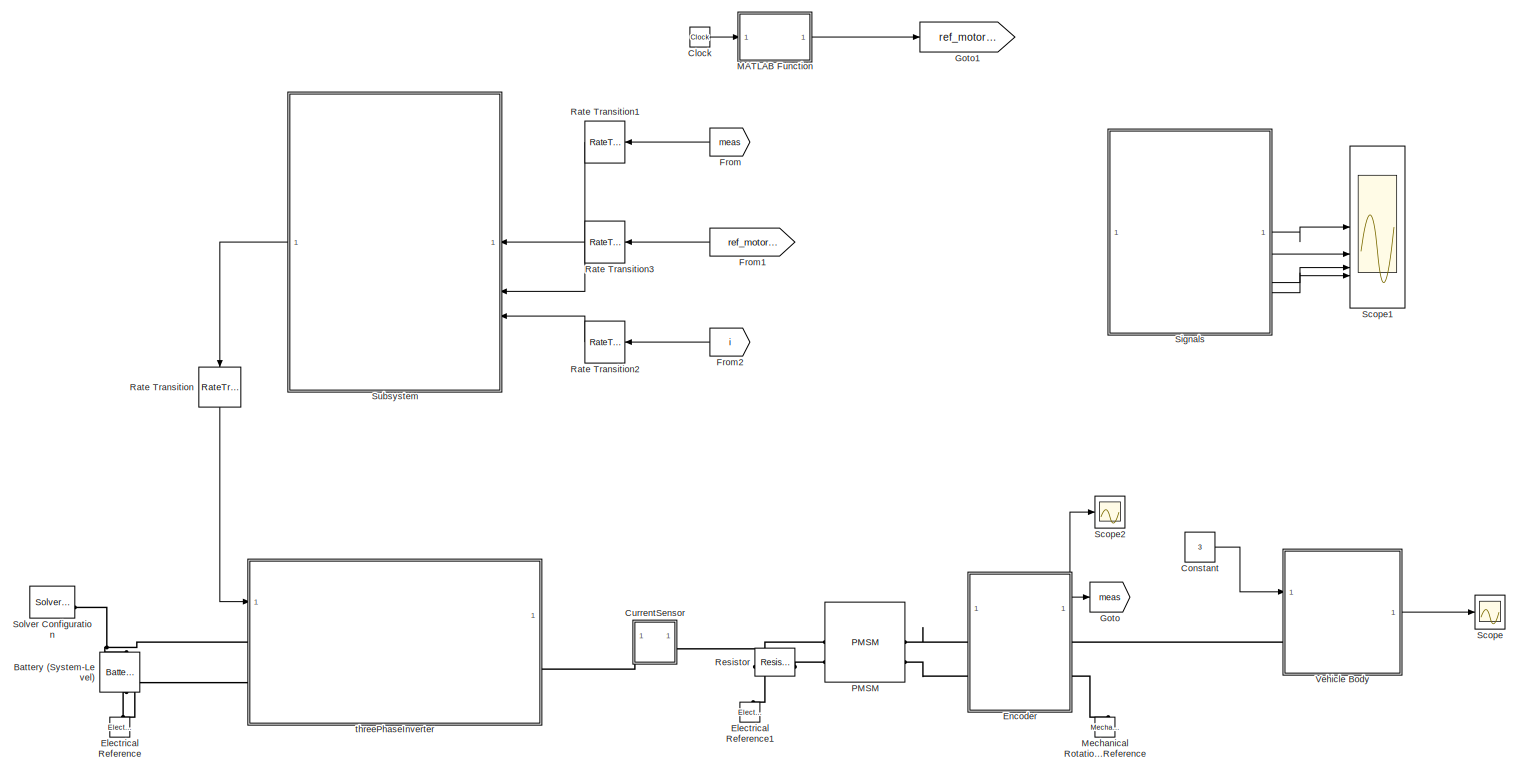
[diagram: root canvas - part 1/1, most of the canvas]
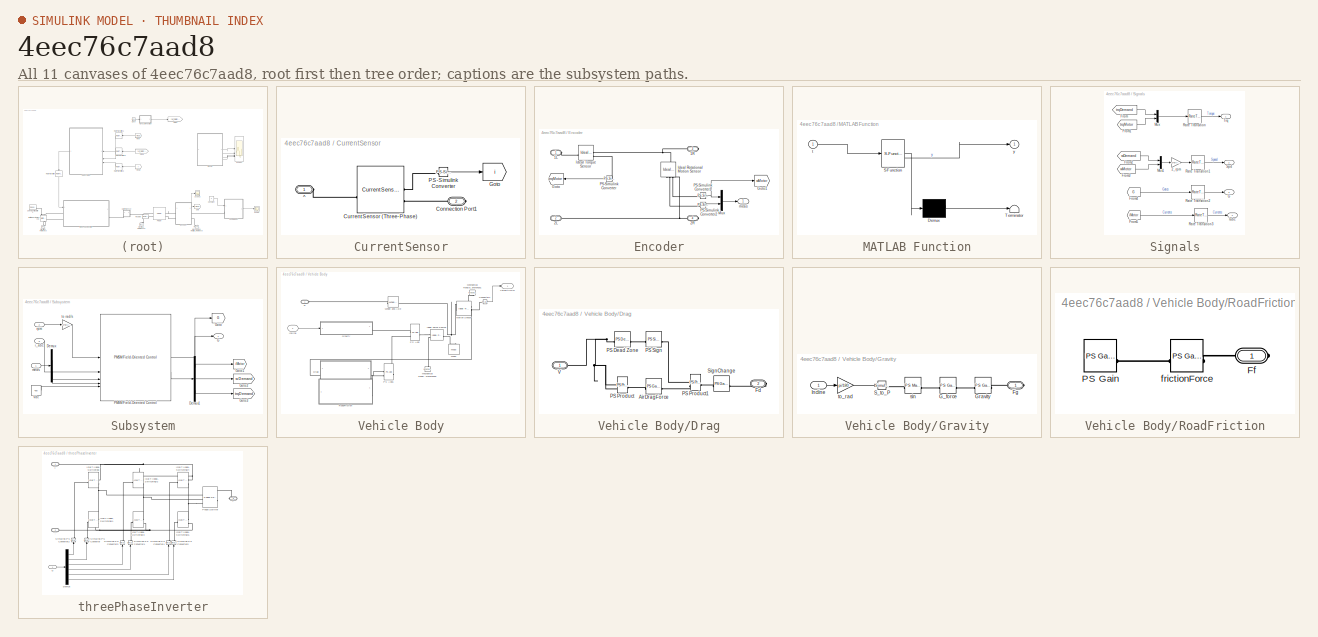
[diagram: thumbnail index - all 11 canvases of the model, root first then tree order]
MODEL slx_4eec76c7aad8
KIND model
CONFIG AbsTol = 1e-3
CONFIG EnableMultiTasking = off
CONFIG FixedStep = auto
CONFIG MaxStep = auto
CONFIG MinStep = auto
CONFIG RelTol = 1e-3
CONFIG SampleTimeConstraint = Unconstrained
CONFIG SolverName = VariableStepAuto
CONFIG StartTime = 0.0
CONFIG StopTime = 5
BLOCK [Reference] Battery (System-Level)  REF=sdl_lib/Sources/Battery
(System-Level)
  NameLocation = right
  SourceBlock = sdl_lib/Sources/Battery\n(System-Level)
  SourceType = Battery\n(System-Level)
BLOCK [Clock] Clock
BLOCK [Constant] Constant
  Value = 3
BLOCK [SubSystem] CurrentSensor
BLOCK [PMIOPort] CurrentSensor/Connection Port1
  Port = 2
  Side = Right
BLOCK [Reference] CurrentSensor/Current Sensor (Three-Phase)  REF=ee_lib/Sensors &
Transducers/Current Sensor
(Three-Phase)
  SourceBlock = ee_lib/Sensors &\nTransducers/Current Sensor\n(Three-Phase)
  SourceType = Current Sensor\n(Three-Phase)
BLOCK [Goto] CurrentSensor/Goto
  GotoTag = i
  TagVisibility = global
BLOCK [Reference] CurrentSensor/PS-Simulink Converter  REF=nesl_utility/PS-Simulink
Converter
  SourceBlock = nesl_utility/PS-Simulink\nConverter
  SourceType = PS-Simulink\nConverter
BLOCK [PMIOPort] CurrentSensor/^
  Side = Left
BLOCK [Reference] Electrical Reference  REF=fl_lib/Electrical/Electrical Elements/Electrical Reference
  NameLocation = right
  SourceBlock = fl_lib/Electrical/Electrical Elements/Electrical Reference
  SourceType = Electrical Reference
BLOCK [Reference] Electrical Reference1  REF=fl_lib/Electrical/Electrical Elements/Electrical Reference
  NameLocation = right
  SourceBlock = fl_lib/Electrical/Electrical Elements/Electrical Reference
  SourceType = Electrical Reference
BLOCK [SubSystem] Encoder
BLOCK [PMIOPort] Encoder/1L
  Side = Left
BLOCK [PMIOPort] Encoder/1R
  Port = 3
  Side = Right
BLOCK [PMIOPort] Encoder/2L
  Port = 2
  Side = Left
BLOCK [PMIOPort] Encoder/2R
  Port = 4
  Side = Right
BLOCK [Goto] Encoder/Goto
  GotoTag = trqMotor
  TagVisibility = global
BLOCK [Goto] Encoder/Goto1
  GotoTag = wMotor
  TagVisibility = global
BLOCK [Reference] Encoder/Ideal Rotational Motion Sensor  REF=fl_lib/Mechanical/Mechanical Sensors/Ideal Rotational
Motion Sensor
  NameLocation = left
  SourceBlock = fl_lib/Mechanical/Mechanical Sensors/Ideal Rotational\nMotion Sensor
  SourceType = Ideal Rotational\nMotion Sensor
BLOCK [Reference] Encoder/Ideal Torque Sensor  REF=fl_lib/Mechanical/Mechanical Sensors/Ideal Torque Sensor
  SourceBlock = fl_lib/Mechanical/Mechanical Sensors/Ideal Torque Sensor
  SourceType = Ideal Torque Sensor
BLOCK [Mux] Encoder/Mux
  DisplayOption = bar
  Inputs = 2
BLOCK [Reference] Encoder/PS-Simulink Converter  REF=nesl_utility/PS-Simulink
Converter
  SourceBlock = nesl_utility/PS-Simulink\nConverter
  SourceType = PS-Simulink\nConverter
BLOCK [Reference] Encoder/PS-Simulink Converter1  REF=nesl_utility/PS-Simulink
Converter
  SourceBlock = nesl_utility/PS-Simulink\nConverter
  SourceType = PS-Simulink\nConverter
BLOCK [Reference] Encoder/PS-Simulink Converter2  REF=nesl_utility/PS-Simulink
Converter
  SourceBlock = nesl_utility/PS-Simulink\nConverter
  SourceType = PS-Simulink\nConverter
BLOCK [Outport] Encoder/meas
BLOCK [From] From
  GotoTag = meas
  TagVisibility = global
BLOCK [From] From1
  GotoTag = ref_motor_rpm
  TagVisibility = global
BLOCK [From] From2
  GotoTag = i
  TagVisibility = global
BLOCK [Goto] Goto
  GotoTag = meas
  TagVisibility = global
BLOCK [Goto] Goto1
  GotoTag = ref_motor_rpm
  TagVisibility = global
BLOCK [SubSystem] MATLAB Function
  ErrorFcn = Stateflow.Translate.translate
  PermitHierarchicalResolution = ExplicitOnly
  SFBlockType = MATLAB Function
  TreatAsAtomicUnit = on
BLOCK [Demux] MATLAB Function/ Demux 
  Outputs = 1
BLOCK [S-Function] MATLAB Function/ SFunction 
  EnableBusSupport = on
  FunctionName = sf_sfun
  PortCounts = [1 2]
  SFcnIsStateOwnerBlock = off
  SFunctionDeploymentMode = off
  Tag = Stateflow S-Function 2
BLOCK [Terminator] MATLAB Function/ Terminator 
BLOCK [Inport] MATLAB Function/t
BLOCK [Outport] MATLAB Function/y
BLOCK [Reference] Mechanical Rotational Reference  REF=fl_lib/Mechanical/Rotational Elements/Mechanical
Rotational Reference
  NameLocation = right
  SourceBlock = fl_lib/Mechanical/Rotational Elements/Mechanical\nRotational Reference
  SourceType = Mechanical\nRotational Reference
BLOCK [Reference] PMSM  REF=ee_lib/Electromechanical/Permanent Magnet/PMSM
  SourceBlock = ee_lib/Electromechanical/Permanent Magnet/PMSM
  SourceType = PMSM
BLOCK [RateTransition] Rate Transition
  NameLocation = left
BLOCK [RateTransition] Rate Transition1
BLOCK [RateTransition] Rate Transition2
BLOCK [RateTransition] Rate Transition3
BLOCK [Reference] Resistor  REF=fl_lib/Electrical/Electrical Elements/Resistor
  SourceBlock = fl_lib/Electrical/Electrical Elements/Resistor
  SourceType = Resistor
BLOCK [Scope] Scope
  Floating = off
  NumInputPorts = 1
  ScopeSpecificationString = Simulink.scopes.TimeScopeBlockCfg('CurrentConfiguration', extmgr.ConfigurationSet(extmgr.Configuration('Core','General UI',true),extmgr.Configuration('Core','Source UI',true),extmgr.Configuration('Sources','WiredSimulink',true),extmgr.Configuration('Visuals','Time Domain',true,'SerializedDisplays',{struct('MinYLimReal','-1.6219','MaxYLimReal','0.18021','YLabelReal','','MinYLimMag','0.00000','MaxYL...<+1417ch>
BLOCK [Scope] Scope1
  Floating = off
  NumInputPorts = 4
  ScopeSpecificationString = Simulink.scopes.TimeScopeBlockCfg('CurrentConfiguration', extmgr.ConfigurationSet(extmgr.Configuration('Core','General UI',true),extmgr.Configuration('Core','Source UI',true),extmgr.Configuration('Sources','WiredSimulink',true,'DataLoggingVariableName','ScopeData1'),extmgr.Configuration('Visuals','Time Domain',true,'SerializedDisplays',{struct('MinYLimReal','-29.99251','MaxYLimReal','259.93262','Y...<+4563ch>
BLOCK [Scope] Scope2
  Floating = off
  NumInputPorts = 1
  ScopeSpecificationString = Simulink.scopes.TimeScopeBlockCfg('CurrentConfiguration', extmgr.ConfigurationSet(extmgr.Configuration('Core','General UI',true),extmgr.Configuration('Core','Source UI',true),extmgr.Configuration('Sources','WiredSimulink',true,'DataLoggingVariableName','ScopeData1'),extmgr.Configuration('Visuals','Time Domain',true,'SerializedDisplays',{struct('MinYLimReal','-17.63681','MaxYLimReal','1.95965','YLa...<+1500ch>
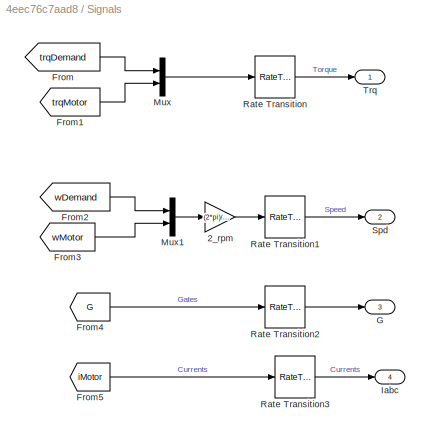
BLOCK [SubSystem] Signals
BLOCK [Gain] Signals/2_rpm
  Gain = (2*pi)/60
BLOCK [From] Signals/From
  GotoTag = trqDemand
  TagVisibility = global
BLOCK [From] Signals/From1
  GotoTag = trqMotor
  TagVisibility = global
BLOCK [From] Signals/From2
  GotoTag = wDemand
  TagVisibility = global
BLOCK [From] Signals/From3
  GotoTag = wMotor
  TagVisibility = global
BLOCK [From] Signals/From4
  GotoTag = G
  TagVisibility = global
BLOCK [From] Signals/From5
  GotoTag = iMotor
  TagVisibility = global
BLOCK [Outport] Signals/G
  Port = 3
BLOCK [Outport] Signals/Iabc
  Port = 4
BLOCK [Mux] Signals/Mux
  DisplayOption = bar
  Inputs = 2
BLOCK [Mux] Signals/Mux1
  DisplayOption = bar
  Inputs = 2
BLOCK [RateTransition] Signals/Rate Transition
BLOCK [RateTransition] Signals/Rate Transition1
BLOCK [RateTransition] Signals/Rate Transition2
BLOCK [RateTransition] Signals/Rate Transition3
BLOCK [Outport] Signals/Spd
  Port = 2
BLOCK [Outport] Signals/Trq
BLOCK [Reference] Solver Configuration  REF=nesl_utility/Solver
Configuration
  SourceBlock = nesl_utility/Solver\nConfiguration
  SourceType = Solver\nConfiguration
BLOCK [SubSystem] Subsystem
BLOCK [Demux] Subsystem/Demux
  Outputs = 2
BLOCK [Demux] Subsystem/Demux1
  Outputs = 3
BLOCK [Outport] Subsystem/G
BLOCK [Goto] Subsystem/Goto
  GotoTag = G
  TagVisibility = global
BLOCK [Goto] Subsystem/Goto1
  GotoTag = iMotor
  TagVisibility = global
BLOCK [Goto] Subsystem/Goto2
  GotoTag = wDemand
  TagVisibility = global
BLOCK [Goto] Subsystem/Goto3
  GotoTag = trqDemand
  TagVisibility = global
BLOCK [Reference] Subsystem/PMSM Field-Oriented Control  REF=eePmsmFieldOrientedControl/PMSM Field-Oriented
Control
  LibrarySourceBlock = ee_sl_lib/PMSM Control/PMSM Field-Oriented\nControl
  SourceBlock = eePmsmFieldOrientedControl/PMSM Field-Oriented\nControl
  SourceType = PMSM Field-Oriented Control
BLOCK [Constant] Subsystem/Vdc
  Value = 400
BLOCK [Inport] Subsystem/i_abc
  Port = 3
BLOCK [Inport] Subsystem/meas
BLOCK [Inport] Subsystem/rpm
  Port = 2
BLOCK [Gain] Subsystem/to rad//s
  Gain = (2*pi)/60
BLOCK [SubSystem] Vehicle Body
BLOCK [Reference] Vehicle Body/Converter1  REF=nesl_utility/PS-Simulink
Converter
  SourceBlock = nesl_utility/PS-Simulink\nConverter
  SourceType = PS-Simulink\nConverter
BLOCK [SubSystem] Vehicle Body/Drag
BLOCK [Reference] Vehicle Body/Drag/AirDragForce  REF=fl_lib/Physical Signals/Functions/PS Gain
  SourceBlock = fl_lib/Physical Signals/Functions/PS Gain
  SourceType = PS Gain
BLOCK [PMIOPort] Vehicle Body/Drag/Fd
  Port = 2
  Side = Right
BLOCK [Reference] Vehicle Body/Drag/PS Dead Zone  REF=fl_lib/Physical Signals/Nonlinear Operators/PS Dead Zone
  SourceBlock = fl_lib/Physical Signals/Nonlinear Operators/PS Dead Zone
  SourceType = PS Dead Zone
BLOCK [Reference] Vehicle Body/Drag/PS Product  REF=fl_lib/Physical Signals/Functions/PS Product
  SourceBlock = fl_lib/Physical Signals/Functions/PS Product
  SourceType = PS Product
BLOCK [Reference] Vehicle Body/Drag/PS Product1  REF=fl_lib/Physical Signals/Functions/PS Product
  SourceBlock = fl_lib/Physical Signals/Functions/PS Product
  SourceType = PS Product
BLOCK [Reference] Vehicle Body/Drag/PS Sign  REF=fl_lib/Physical Signals/Nonlinear Operators/PS Sign
  SourceBlock = fl_lib/Physical Signals/Nonlinear Operators/PS Sign
  SourceType = PS Sign
BLOCK [Reference] Vehicle Body/Drag/SignChange  REF=fl_lib/Physical Signals/Functions/PS Gain
  SourceBlock = fl_lib/Physical Signals/Functions/PS Gain
  SourceType = PS Gain
BLOCK [PMIOPort] Vehicle Body/Drag/V
  Side = Left
BLOCK [SubSystem] Vehicle Body/Gravity
BLOCK [PMIOPort] Vehicle Body/Gravity/Fg
  Side = Right
BLOCK [Reference] Vehicle Body/Gravity/G_force  REF=fl_lib/Physical Signals/Functions/PS Gain
  SourceBlock = fl_lib/Physical Signals/Functions/PS Gain
  SourceType = PS Gain
BLOCK [Reference] Vehicle Body/Gravity/Gravity  REF=fl_lib/Physical Signals/Functions/PS Gain
  SourceBlock = fl_lib/Physical Signals/Functions/PS Gain
  SourceType = PS Gain
BLOCK [Inport] Vehicle Body/Gravity/Incline
BLOCK [Reference] Vehicle Body/Gravity/S_to_P  REF=nesl_utility/Simulink-PS
Converter
  SourceBlock = nesl_utility/Simulink-PS\nConverter
  SourceType = Simulink-PS\nConverter
BLOCK [Reference] Vehicle Body/Gravity/sin  REF=fl_lib/Physical Signals/Functions/PS Math Function
  SourceBlock = fl_lib/Physical Signals/Functions/PS Math Function
  SourceType = PS Math Function
BLOCK [Gain] Vehicle Body/Gravity/to_rad
  Gain = pi/180
BLOCK [Reference] Vehicle Body/Ideal Force Source  REF=fl_lib/Mechanical/Mechanical Sources/Ideal Force Source
  SourceBlock = fl_lib/Mechanical/Mechanical Sources/Ideal Force Source
  SourceType = Ideal Force Source
BLOCK [Inport] Vehicle Body/Incline
BLOCK [Reference] Vehicle Body/Mass  REF=fl_lib/Mechanical/Translational
Elements/Mass
  NameLocation = right
  SourceBlock = fl_lib/Mechanical/Translational\nElements/Mass
  SourceType = Mass
BLOCK [Reference] Vehicle Body/Mechanical Translational Reference  REF=fl_lib/Mechanical/Translational
Elements/Mechanical
Translational
Reference
  NameLocation = right
  SourceBlock = fl_lib/Mechanical/Translational\nElements/Mechanical\nTranslational\nReference
  SourceType = Mechanical\nTranslational\nReference
BLOCK [Reference] Vehicle Body/Mechanical Translational Reference1  REF=fl_lib/Mechanical/Translational
Elements/Mechanical
Translational
Reference
  NameLocation = left
  SourceBlock = fl_lib/Mechanical/Translational\nElements/Mechanical\nTranslational\nReference
  SourceType = Mechanical\nTranslational\nReference
BLOCK [Reference] Vehicle Body/Motion Sensor  REF=fl_lib/Mechanical/Mechanical Sensors/Ideal Translational
Motion Sensor
  SourceBlock = fl_lib/Mechanical/Mechanical Sensors/Ideal Translational\nMotion Sensor
  SourceType = Ideal Translational\nMotion Sensor
BLOCK [Reference] Vehicle Body/PS Add  REF=fl_lib/Physical Signals/Functions/PS Add
  SourceBlock = fl_lib/Physical Signals/Functions/PS Add
  SourceType = PS Add
BLOCK [Reference] Vehicle Body/PS Add1  REF=fl_lib/Physical Signals/Functions/PS Add
  SourceBlock = fl_lib/Physical Signals/Functions/PS Add
  SourceType = PS Add
BLOCK [PMIOPort] Vehicle Body/R
  Side = Left
BLOCK [SubSystem] Vehicle Body/RoadFriction
BLOCK [PMIOPort] Vehicle Body/RoadFriction/Ff
  Side = Right
BLOCK [Reference] Vehicle Body/RoadFriction/PS Gain  REF=fl_lib/Physical Signals/Functions/PS Gain
  SourceBlock = fl_lib/Physical Signals/Functions/PS Gain
  SourceType = PS Gain
BLOCK [Reference] Vehicle Body/RoadFriction/frictionForce  REF=fl_lib/Physical Signals/Functions/PS Gain
  SourceBlock = fl_lib/Physical Signals/Functions/PS Gain
  SourceType = PS Gain
BLOCK [Outport] Vehicle Body/Velocity(m//s)
BLOCK [Reference] Vehicle Body/Wheel and Axle  REF=fl_lib/Mechanical/Mechanisms/Wheel and Axle
  SourceBlock = fl_lib/Mechanical/Mechanisms/Wheel and Axle
  SourceType = Wheel and Axle
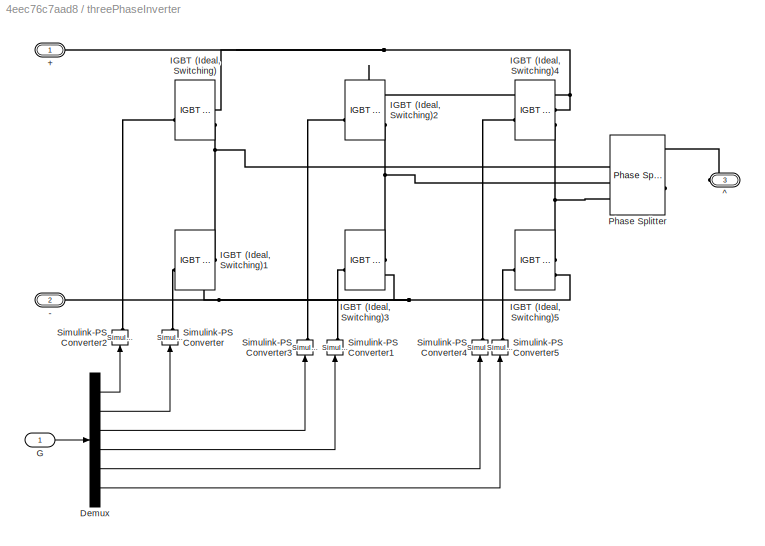
BLOCK [SubSystem] threePhaseInverter
BLOCK [PMIOPort] threePhaseInverter/+
  Side = Left
BLOCK [PMIOPort] threePhaseInverter/-
  Port = 2
  Side = Left
BLOCK [Demux] threePhaseInverter/Demux
  Outputs = 6
BLOCK [Inport] threePhaseInverter/G
BLOCK [Reference] threePhaseInverter/IGBT (Ideal, Switching)  REF=ee_lib/Semiconductors &
Converters/IGBT
(Ideal,
Switching)
  SourceBlock = ee_lib/Semiconductors &\nConverters/IGBT\n(Ideal,\nSwitching)
  SourceType = IGBT\n(Ideal,\nSwitching)
BLOCK [Reference] threePhaseInverter/IGBT (Ideal, Switching)1  REF=ee_lib/Semiconductors &
Converters/IGBT
(Ideal,
Switching)
  SourceBlock = ee_lib/Semiconductors &\nConverters/IGBT\n(Ideal,\nSwitching)
  SourceType = IGBT\n(Ideal,\nSwitching)
BLOCK [Reference] threePhaseInverter/IGBT (Ideal, Switching)2  REF=ee_lib/Semiconductors &
Converters/IGBT
(Ideal,
Switching)
  SourceBlock = ee_lib/Semiconductors &\nConverters/IGBT\n(Ideal,\nSwitching)
  SourceType = IGBT\n(Ideal,\nSwitching)
BLOCK [Reference] threePhaseInverter/IGBT (Ideal, Switching)3  REF=ee_lib/Semiconductors &
Converters/IGBT
(Ideal,
Switching)
  SourceBlock = ee_lib/Semiconductors &\nConverters/IGBT\n(Ideal,\nSwitching)
  SourceType = IGBT\n(Ideal,\nSwitching)
BLOCK [Reference] threePhaseInverter/IGBT (Ideal, Switching)4  REF=ee_lib/Semiconductors &
Converters/IGBT
(Ideal,
Switching)
  SourceBlock = ee_lib/Semiconductors &\nConverters/IGBT\n(Ideal,\nSwitching)
  SourceType = IGBT\n(Ideal,\nSwitching)
BLOCK [Reference] threePhaseInverter/IGBT (Ideal, Switching)5  REF=ee_lib/Semiconductors &
Converters/IGBT
(Ideal,
Switching)
  SourceBlock = ee_lib/Semiconductors &\nConverters/IGBT\n(Ideal,\nSwitching)
  SourceType = IGBT\n(Ideal,\nSwitching)
BLOCK [Reference] threePhaseInverter/Phase Splitter  REF=ee_lib/Connectors &
References/Phase Splitter
  SourceBlock = ee_lib/Connectors &\nReferences/Phase Splitter
  SourceType = Phase Splitter
BLOCK [Reference] threePhaseInverter/Simulink-PS Converter  REF=nesl_utility/Simulink-PS
Converter
  NameLocation = right
  SourceBlock = nesl_utility/Simulink-PS\nConverter
  SourceType = Simulink-PS\nConverter
BLOCK [Reference] threePhaseInverter/Simulink-PS Converter1  REF=nesl_utility/Simulink-PS
Converter
  NameLocation = right
  SourceBlock = nesl_utility/Simulink-PS\nConverter
  SourceType = Simulink-PS\nConverter
BLOCK [Reference] threePhaseInverter/Simulink-PS Converter2  REF=nesl_utility/Simulink-PS
Converter
  NameLocation = right
  SourceBlock = nesl_utility/Simulink-PS\nConverter
  SourceType = Simulink-PS\nConverter
BLOCK [Reference] threePhaseInverter/Simulink-PS Converter3  REF=nesl_utility/Simulink-PS
Converter
  NameLocation = right
  SourceBlock = nesl_utility/Simulink-PS\nConverter
  SourceType = Simulink-PS\nConverter
BLOCK [Reference] threePhaseInverter/Simulink-PS Converter4  REF=nesl_utility/Simulink-PS
Converter
  NameLocation = right
  SourceBlock = nesl_utility/Simulink-PS\nConverter
  SourceType = Simulink-PS\nConverter
BLOCK [Reference] threePhaseInverter/Simulink-PS Converter5  REF=nesl_utility/Simulink-PS
Converter
  NameLocation = right
  SourceBlock = nesl_utility/Simulink-PS\nConverter
  SourceType = Simulink-PS\nConverter
BLOCK [PMIOPort] threePhaseInverter/^
  Port = 3
  Side = Right
LINE Clock:1 -> MATLAB Function:1
LINE Constant:1 -> Vehicle Body:1
LINE CurrentSensor/PS-Simulink Converter:1 -> CurrentSensor/Goto:1
LINE Encoder/Mux:1 -> Encoder/meas:1
NET Encoder/PS-Simulink Converter1:1 -> Encoder/Goto1:1, Encoder/Mux:1
LINE Encoder/PS-Simulink Converter2:1 -> Encoder/Mux:2
LINE Encoder/PS-Simulink Converter:1 -> Encoder/Goto:1
NET Encoder:1 -> Goto:1, Scope2:1
LINE From1:1 -> Rate Transition3:1
LINE From2:1 -> Rate Transition2:1
LINE From:1 -> Rate Transition1:1
LINE MATLAB Function:1 -> Goto1:1
LINE Rate Transition1:1 -> Subsystem:1
LINE Rate Transition2:1 -> Subsystem:3
LINE Rate Transition3:1 -> Subsystem:2
LINE Rate Transition:1 -> threePhaseInverter:1
LINE Signals/2_rpm:1 -> Signals/Rate Transition1:1
LINE Signals/From1:1 -> Signals/Mux:2
LINE Signals/From2:1 -> Signals/Mux1:1
LINE Signals/From3:1 -> Signals/Mux1:2
LINE Signals/From4:1 -> Signals/Rate Transition2:1
LINE Signals/From5:1 -> Signals/Rate Transition3:1
LINE Signals/From:1 -> Signals/Mux:1
LINE Signals/Mux1:1 -> Signals/2_rpm:1
LINE Signals/Mux:1 -> Signals/Rate Transition:1
LINE Signals/Rate Transition1:1 -> Signals/Spd:1
LINE Signals/Rate Transition2:1 -> Signals/G:1
LINE Signals/Rate Transition3:1 -> Signals/Iabc:1
LINE Signals/Rate Transition:1 -> Signals/Trq:1
LINE Signals:1 -> Scope1:1
LINE Signals:2 -> Scope1:2
LINE Signals:3 -> Scope1:3
LINE Signals:4 -> Scope1:4
LINE Subsystem/Demux1:1 -> Subsystem/Goto1:1
LINE Subsystem/Demux1:2 -> Subsystem/Goto2:1
LINE Subsystem/Demux1:3 -> Subsystem/Goto3:1
LINE Subsystem/Demux:1 -> Subsystem/PMSM Field-Oriented Control:3
LINE Subsystem/Demux:2 -> Subsystem/PMSM Field-Oriented Control:4
NET Subsystem/PMSM Field-Oriented Control:1 -> Subsystem/G:1, Subsystem/Goto:1
LINE Subsystem/PMSM Field-Oriented Control:2 -> Subsystem/Demux1:1
LINE Subsystem/Vdc:1 -> Subsystem/PMSM Field-Oriented Control:5
LINE Subsystem/i_abc:1 -> Subsystem/PMSM Field-Oriented Control:2
LINE Subsystem/meas:1 -> Subsystem/Demux:1
LINE Subsystem/rpm:1 -> Subsystem/to rad//s:1
LINE Subsystem/to rad//s:1 -> Subsystem/PMSM Field-Oriented Control:1
LINE Subsystem:1 -> Rate Transition:1
LINE Vehicle Body/Converter1:1 -> Vehicle Body/Velocity(m//s):1
LINE Vehicle Body/Gravity/Incline:1 -> Vehicle Body/Gravity/to_rad:1
LINE Vehicle Body/Gravity/to_rad:1 -> Vehicle Body/Gravity/S_to_P:1
LINE Vehicle Body/Incline:1 -> Vehicle Body/Gravity:1
LINE Vehicle Body:1 -> Scope:1
LINE threePhaseInverter/Demux:1 -> threePhaseInverter/Simulink-PS Converter2:1
LINE threePhaseInverter/Demux:2 -> threePhaseInverter/Simulink-PS Converter:1
LINE threePhaseInverter/Demux:3 -> threePhaseInverter/Simulink-PS Converter3:1
LINE threePhaseInverter/Demux:4 -> threePhaseInverter/Simulink-PS Converter1:1
LINE threePhaseInverter/Demux:5 -> threePhaseInverter/Simulink-PS Converter4:1
LINE threePhaseInverter/Demux:6 -> threePhaseInverter/Simulink-PS Converter5:1
LINE threePhaseInverter/G:1 -> threePhaseInverter/Demux:1
PNET net1: Battery (System-Level):LConn1 -- Solver Configuration:RConn1 -- threePhaseInverter:LConn1
PNET net2: Battery (System-Level):RConn1 -- Electrical Reference:LConn1 -- threePhaseInverter:LConn2
PLINE CurrentSensor/Connection Port1:RConn1 -- CurrentSensor/Current Sensor (Three-Phase):RConn2
PLINE CurrentSensor/Current Sensor (Three-Phase):LConn1 -- CurrentSensor/^:RConn1
PLINE CurrentSensor/Current Sensor (Three-Phase):RConn1 -- CurrentSensor/PS-Simulink Converter:LConn1
PLINE CurrentSensor:LConn1 -- threePhaseInverter:RConn1
PLINE CurrentSensor:RConn1 -- PMSM:LConn1
PLINE Electrical Reference1:LConn1 -- Resistor:LConn1
PLINE Encoder/1L:RConn1 -- Encoder/Ideal Torque Sensor:LConn1
PNET net3: Encoder/1R:RConn1 -- Encoder/Ideal Rotational Motion Sensor:LConn1 -- Encoder/Ideal Torque Sensor:RConn1
PNET net4: Encoder/2L:RConn1 -- Encoder/2R:RConn1 -- Encoder/Ideal Rotational Motion Sensor:RConn1
PLINE Encoder/Ideal Rotational Motion Sensor:RConn2 -- Encoder/PS-Simulink Converter2:LConn1
PLINE Encoder/Ideal Rotational Motion Sensor:RConn3 -- Encoder/PS-Simulink Converter1:LConn1
PLINE Encoder/Ideal Torque Sensor:RConn2 -- Encoder/PS-Simulink Converter:LConn1
PLINE Encoder:LConn1 -- PMSM:RConn1
PLINE Encoder:LConn2 -- PMSM:RConn2
PLINE Encoder:RConn1 -- Vehicle Body:LConn1
PLINE Encoder:RConn2 -- Mechanical Rotational Reference:LConn1
PLINE PMSM:LConn2 -- Resistor:RConn1
PNET net5: Vehicle Body/Converter1:LConn1 -- Vehicle Body/Drag:LConn1 -- Vehicle Body/Motion Sensor:RConn2
PLINE Vehicle Body/Drag/AirDragForce:LConn1 -- Vehicle Body/Drag/PS Product:RConn1
PLINE Vehicle Body/Drag/AirDragForce:RConn1 -- Vehicle Body/Drag/PS Product1:LConn2
PLINE Vehicle Body/Drag/Fd:RConn1 -- Vehicle Body/Drag/SignChange:RConn1
PNET net6: Vehicle Body/Drag/PS Dead Zone:LConn1 -- Vehicle Body/Drag/PS Product:LConn1 -- Vehicle Body/Drag/PS Product:LConn2 -- Vehicle Body/Drag/V:RConn1
PLINE Vehicle Body/Drag/PS Dead Zone:RConn1 -- Vehicle Body/Drag/PS Sign:LConn1
PLINE Vehicle Body/Drag/PS Product1:LConn1 -- Vehicle Body/Drag/PS Sign:RConn1
PLINE Vehicle Body/Drag/PS Product1:RConn1 -- Vehicle Body/Drag/SignChange:LConn1
PLINE Vehicle Body/Drag:RConn1 -- Vehicle Body/PS Add1:LConn1
PLINE Vehicle Body/Gravity/Fg:RConn1 -- Vehicle Body/Gravity/Gravity:RConn1
PLINE Vehicle Body/Gravity/G_force:LConn1 -- Vehicle Body/Gravity/sin:RConn1
PLINE Vehicle Body/Gravity/G_force:RConn1 -- Vehicle Body/Gravity/Gravity:LConn1
PLINE Vehicle Body/Gravity/S_to_P:RConn1 -- Vehicle Body/Gravity/sin:LConn1
PLINE Vehicle Body/Gravity:RConn1 -- Vehicle Body/PS Add:LConn1
PNET net7: Vehicle Body/Ideal Force Source:LConn1 -- Vehicle Body/Mass:LConn1 -- Vehicle Body/Motion Sensor:LConn1 -- Vehicle Body/Wheel and Axle:RConn1
PLINE Vehicle Body/Ideal Force Source:RConn1 -- Vehicle Body/PS Add:RConn1
PLINE Vehicle Body/Ideal Force Source:RConn2 -- Vehicle Body/Mechanical Translational Reference:LConn1
PLINE Vehicle Body/Mechanical Translational Reference1:LConn1 -- Vehicle Body/Motion Sensor:RConn1
PLINE Vehicle Body/PS Add1:LConn2 -- Vehicle Body/RoadFriction:RConn1
PLINE Vehicle Body/PS Add1:RConn1 -- Vehicle Body/PS Add:LConn2
PLINE Vehicle Body/R:RConn1 -- Vehicle Body/Wheel and Axle:LConn1
PLINE Vehicle Body/RoadFriction/Ff:RConn1 -- Vehicle Body/RoadFriction/frictionForce:RConn1
PLINE Vehicle Body/RoadFriction/PS Gain:RConn1 -- Vehicle Body/RoadFriction/frictionForce:LConn1
PNET net8: threePhaseInverter/+:RConn1 -- threePhaseInverter/IGBT (Ideal, Switching)2:RConn1 -- threePhaseInverter/IGBT (Ideal, Switching)4:RConn1 -- threePhaseInverter/IGBT (Ideal, Switching):RConn1
PNET net9: threePhaseInverter/-:RConn1 -- threePhaseInverter/IGBT (Ideal, Switching)1:RConn2 -- threePhaseInverter/IGBT (Ideal, Switching)3:RConn2 -- threePhaseInverter/IGBT (Ideal, Switching)5:RConn2
PLINE threePhaseInverter/IGBT (Ideal, Switching)1:LConn1 -- threePhaseInverter/Simulink-PS Converter:RConn1
PNET net10: threePhaseInverter/IGBT (Ideal, Switching)1:RConn1 -- threePhaseInverter/IGBT (Ideal, Switching):RConn2 -- threePhaseInverter/Phase Splitter:RConn1
PLINE threePhaseInverter/IGBT (Ideal, Switching)2:LConn1 -- threePhaseInverter/Simulink-PS Converter3:RConn1
PNET net11: threePhaseInverter/IGBT (Ideal, Switching)2:RConn2 -- threePhaseInverter/IGBT (Ideal, Switching)3:RConn1 -- threePhaseInverter/Phase Splitter:RConn2
PLINE threePhaseInverter/IGBT (Ideal, Switching)3:LConn1 -- threePhaseInverter/Simulink-PS Converter1:RConn1
PLINE threePhaseInverter/IGBT (Ideal, Switching)4:LConn1 -- threePhaseInverter/Simulink-PS Converter4:RConn1
PNET net12: threePhaseInverter/IGBT (Ideal, Switching)4:RConn2 -- threePhaseInverter/IGBT (Ideal, Switching)5:RConn1 -- threePhaseInverter/Phase Splitter:RConn3
PLINE threePhaseInverter/IGBT (Ideal, Switching)5:LConn1 -- threePhaseInverter/Simulink-PS Converter5:RConn1
PLINE threePhaseInverter/IGBT (Ideal, Switching):LConn1 -- threePhaseInverter/Simulink-PS Converter2:RConn1
PLINE threePhaseInverter/Phase Splitter:LConn1 -- threePhaseInverter/^:RConn1
note: NET lines group one-source signal fan-out (src -> all destinations, sorted); 1:1 wires keep LINE; PNET lines group multi-terminal physical nets as a canonical sorted terminal list (undirected conserving connections); 2-terminal nets keep the pairwise PLINE form
CHART MATLAB Function states=1 transitions=1
  STATE_LABEL 'eML_blk_kernel()'
  STATE_LABEL 'SCRIPT:\nfunction y = signalGen(t)\n% Custom signal generator\n\nif t < 0\n    y = 0;\nelseif t >= 0 && t < 4\n    y = (100 / 4) * t;\nelseif t >= 4 && t < 6\n    y = 100;\nelseif t >= 6 && t <= 10\n    y = 100 - ((100 / 4) * (t - 6));\nelse\n    y = 0;\nend\n\n'
CHART  states=0 transitions=0
